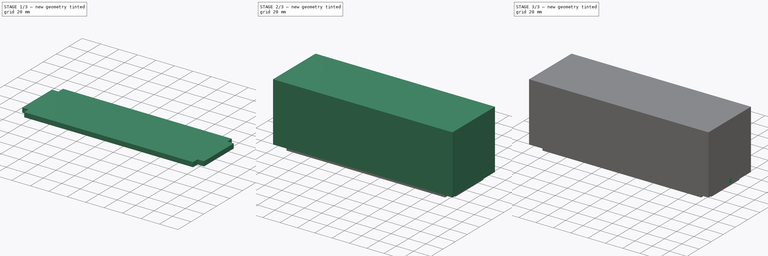
[diagram: build sequence overview — one tinted view per stage of 3, left to right]
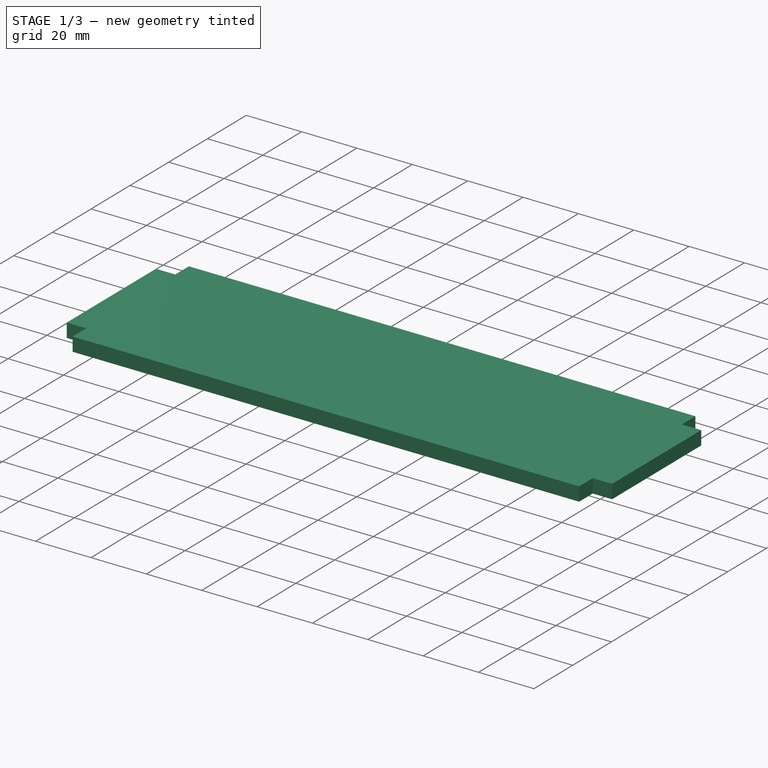
[diagram: stage 1 of 3 — iso view after this stage's code; geometry added in this stage tinted green]
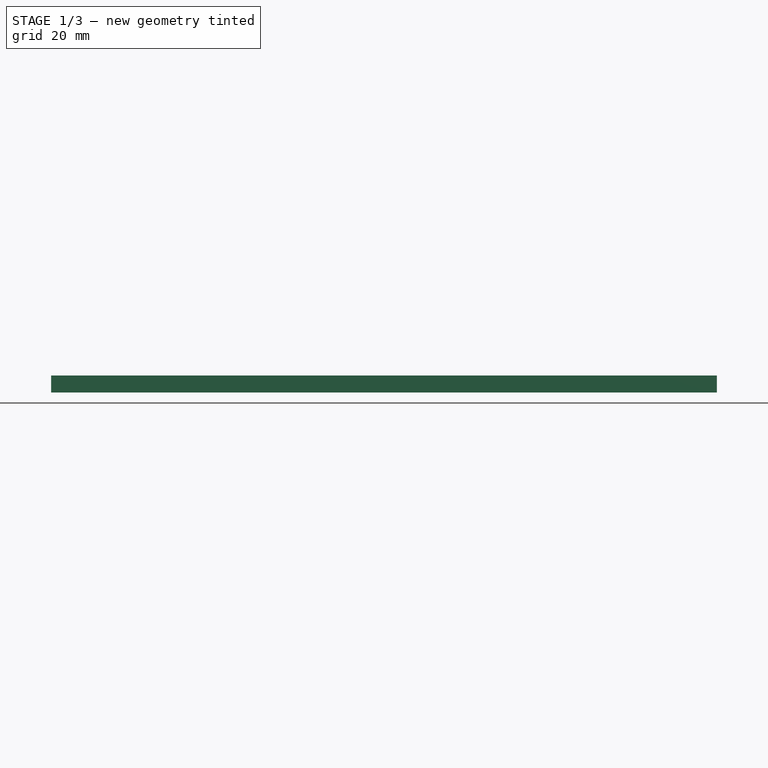
[diagram: stage 1 of 3 — front view after this stage's code; geometry added in this stage tinted green]
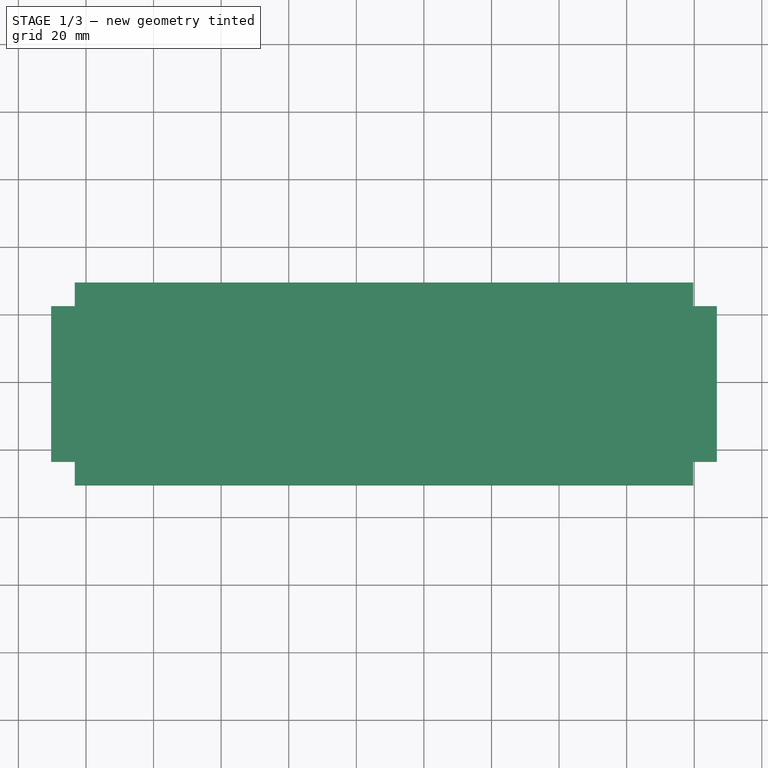
[diagram: stage 1 of 3 — top view after this stage's code; geometry added in this stage tinted green]
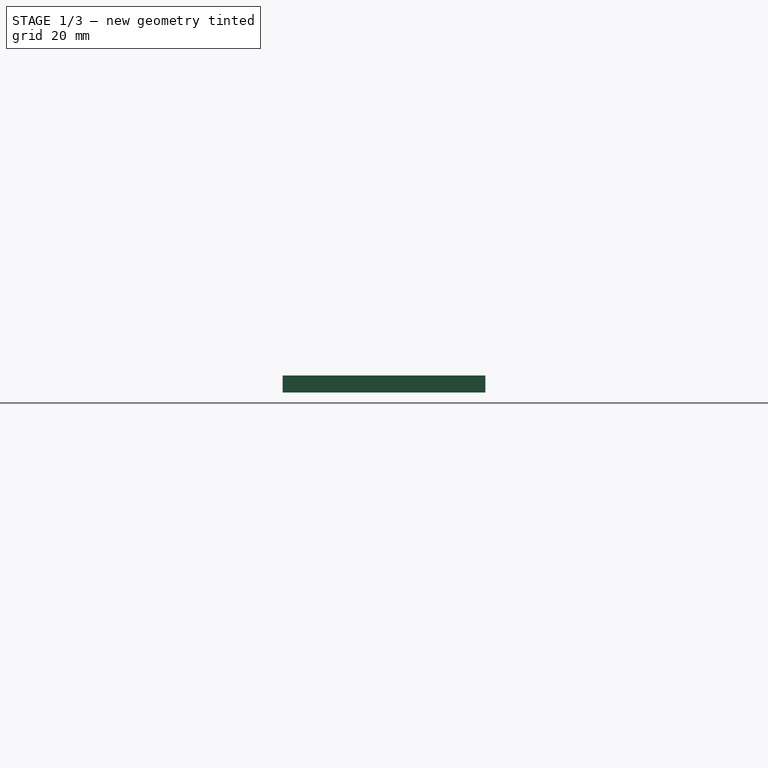
[diagram: stage 1 of 3 — right view after this stage's code; geometry added in this stage tinted green]
FCSTD DOCUMENT  (FreeCAD 0.20R29177 (Git))
Label: ElectronicAssembly_v2
License: All rights reserved
LicenseURL: http://en.wikipedia.org/wiki/All_rights_reserved
objects: Sketcher::SketchObject×7, PartDesign::Pocket×5, PartDesign::Pad×2, PartDesign::Body×2, App::Part×2, Part::Feature×1
note: 24 computed .brp shape members not serialized (recipe doc carries the construction recipe); baked Part::Feature solids carry a one-line shape summary decoded from their .brp

FEATURE [Sketcher::SketchObject] Sketch006
  FullyConstrained = false
  MapMode = 5
  Support = -> [XY_Plane006]
  sketch-geometry (4):
    g0: LineSegment StartX=-75.302 StartY=34.4613 StartZ=0 EndX=131.698 EndY=34.4613 EndZ=0
    g1: LineSegment StartX=131.698 StartY=34.4613 StartZ=0 EndX=131.698 EndY=-35.5387 EndZ=0
    g2: LineSegment StartX=131.698 StartY=-35.5387 StartZ=0 EndX=-75.302 EndY=-35.5387 EndZ=0
    g3: LineSegment StartX=-75.302 StartY=-35.5387 StartZ=0 EndX=-75.302 EndY=34.4613 EndZ=0
  constraints (10):
    c: Coincident(g0,g1)
    c: Coincident(g1,g2)
    c: Coincident(g2,g3)
    c: Coincident(g3,g0)
    c: Horizontal(g0)
    c: Horizontal(g2)
    c: Vertical(g1)
    c: Vertical(g3)
    c: DistanceX(g2,g2) = 207
    c: DistanceY(g1,g1) = 70
FEATURE [PartDesign::Pad] Pad002
  Direction = (0,0,1)
  Length = 68
  Length2 = 100
  Profile = -> Sketch006
  Type = 0
FEATURE [PartDesign::Body] Body002
  Group = -> [Sketch006,Pad002,Sketch007,Pocket,Sketch,Pocket001,Sketch008,Pocket002]
  Origin = -> Origin006
  Tip = -> Pocket002
FEATURE [App::Part] Part003  label="ElectronicsEnclosure"
  Group = -> [Body002]
  Origin = -> Origin005
FEATURE [Sketcher::SketchObject] Sketch009
  ExternalGeometry = -> [Pad002]
  FullyConstrained = true
  MapMode = 5
  Placement = pos=(0,0,0) rot=(1,0,0;3.14159rad)
  Support = -> [Pad002,XZ_Plane007]
  sketch-geometry (20):
    g0: LineSegment StartX=-63.302 StartY=23.5387 StartZ=0 EndX=-70.302 EndY=23.5387 EndZ=0
    g1: LineSegment StartX=-70.302 StartY=23.5387 StartZ=0 EndX=-70.302 EndY=30.5387 EndZ=0
    g2: LineSegment StartX=-70.302 StartY=30.5387 StartZ=0 EndX=-63.302 EndY=30.5387 EndZ=0
    g3: LineSegment StartX=-63.302 StartY=30.5387 StartZ=0 EndX=-63.302 EndY=23.5387 EndZ=0
    g4: LineSegment StartX=-70.302 StartY=-22.4613 StartZ=0 EndX=-63.302 EndY=-22.4613 EndZ=0
    g5: LineSegment StartX=-63.302 StartY=-22.4613 StartZ=0 EndX=-63.302 EndY=-29.4613 EndZ=0
    g6: LineSegment StartX=-63.302 StartY=-29.4613 StartZ=0 EndX=-70.302 EndY=-29.4613 EndZ=0
    g7: LineSegment StartX=-70.302 StartY=-29.4613 StartZ=0 EndX=-70.302 EndY=-22.4613 EndZ=0
    g8: LineSegment StartX=119.698 StartY=-29.4613 StartZ=0 EndX=126.698 EndY=-29.4613 EndZ=0
    g9: LineSegment StartX=126.698 StartY=-29.4613 StartZ=0 EndX=126.698 EndY=-22.4613 EndZ=0
    g10: LineSegment StartX=126.698 StartY=-22.4613 StartZ=0 EndX=119.698 EndY=-22.4613 EndZ=0
    g11: LineSegment StartX=119.698 StartY=-22.4613 StartZ=0 EndX=119.698 EndY=-29.4613 EndZ=0
    g12: LineSegment StartX=119.698 StartY=23.5387 StartZ=0 EndX=126.698 EndY=23.5387 EndZ=0
    g13: LineSegment StartX=126.698 StartY=23.5387 StartZ=0 EndX=126.698 EndY=30.5387 EndZ=0
    g14: LineSegment StartX=126.698 StartY=30.5387 StartZ=0 EndX=119.698 EndY=30.5387 EndZ=0
    g15: LineSegment StartX=119.698 StartY=30.5387 StartZ=0 EndX=119.698 EndY=23.5387 EndZ=0
    g16: LineSegment StartX=-63.302 StartY=-29.4613 StartZ=0 EndX=119.698 EndY=-29.4613 EndZ=0
    g17: LineSegment StartX=126.698 StartY=-22.4613 StartZ=0 EndX=126.698 EndY=23.5387 EndZ=0
    g18: LineSegment StartX=119.698 StartY=30.5387 StartZ=0 EndX=-63.302 EndY=30.5387 EndZ=0
    g19: LineSegment StartX=-70.302 StartY=-22.4613 StartZ=0 EndX=-70.302 EndY=23.5387 EndZ=0
  constraints (56):
    c: Coincident(g0,g1)
    c: Coincident(g1,g2)
    c: Coincident(g2,g3)
    c: Coincident(g3,g0)
    c: Horizontal(g0)
    c: Horizontal(g2)
    c: Vertical(g1)
    c: Vertical(g3)
    c: Coincident(g4,g5)
    c: Coincident(g5,g6)
    c: Coincident(g6,g7)
    c: Coincident(g7,g4)
    c: Horizontal(g4)
    c: Horizontal(g6)
    c: Vertical(g5)
    c: Vertical(g7)
    c: Coincident(g8,g9)
    c: Coincident(g9,g10)
    c: Coincident(g10,g11)
    c: Coincident(g11,g8)
    c: Horizontal(g8)
    c: Horizontal(g10)
    c: Vertical(g9)
    c: Vertical(g11)
    c: Coincident(g12,g13)
    c: Coincident(g13,g14)
    c: Coincident(g14,g15)
    c: Coincident(g15,g12)
    c: Horizontal(g12)
    c: Horizontal(g14)
    c: Vertical(g13)
    c: Vertical(g15)
    c: Vertical(g12,g10)
    c: Horizontal(g12,g0)
    c: Vertical(g0,g4)
    c: Horizontal(g4,g10)
    c: Coincident(g16,g5)
    c: Coincident(g16,g8)
    c: Horizontal(g16)
    c: Coincident(g17,g9)
    c: Coincident(g17,g12)
    c: Vertical(g17)
    c: Coincident(g18,g14)
    c: Coincident(g18,g2)
    c: Horizontal(g18)
    c: Equal(g2,g1)
    c: Equal(g4,g5)
    c: Coincident(g19,g4)
    c: Coincident(g19,g0)
    c: Vertical(g19)
    c: Equal(g15,g12)
    c: DistanceX(g-3,g1) = 5
    c: DistanceY(g1,g-3) = 5
    c: DistanceX(g13,g-4) = 5
    c: DistanceY(g-4,g8) = 5
    c: DistanceX(g4,g4) = 7
FEATURE [PartDesign::Pad] Pad  label="BasePad"
  Direction = (0,0,-1)
  Length = 5
  Length2 = 100
  Placement = pos=(0,0,0) rot=(1,0,0;3.14159rad)
  Profile = -> Sketch009
  Type = 0
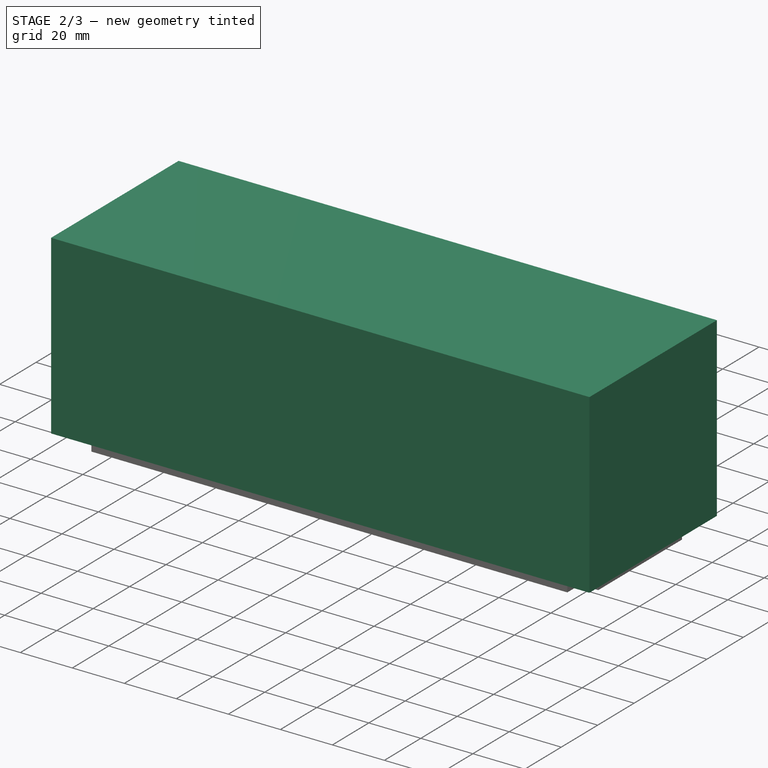
[diagram: stage 2 of 3 — iso view after this stage's code; geometry added in this stage tinted green]
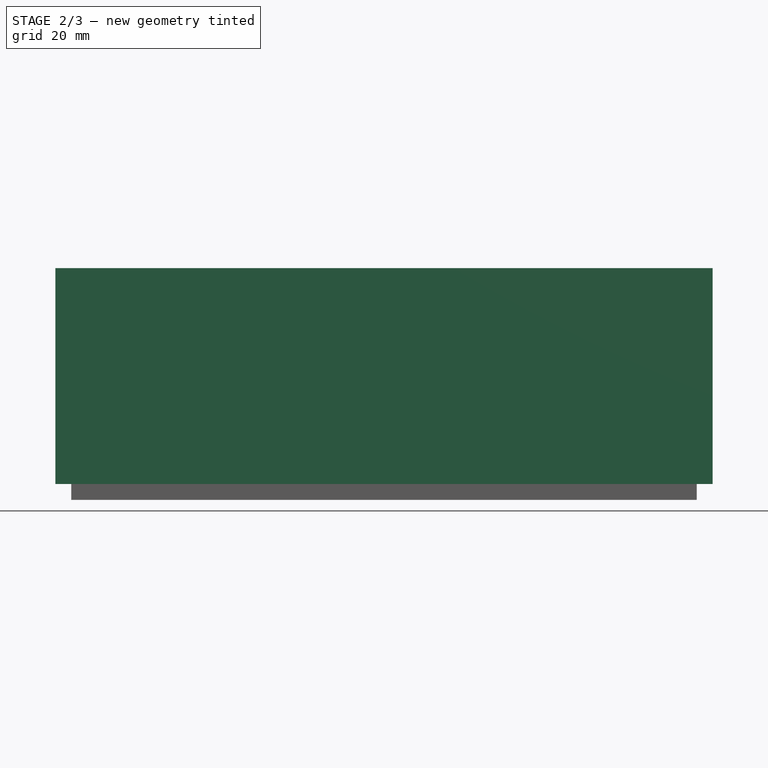
[diagram: stage 2 of 3 — front view after this stage's code; geometry added in this stage tinted green]
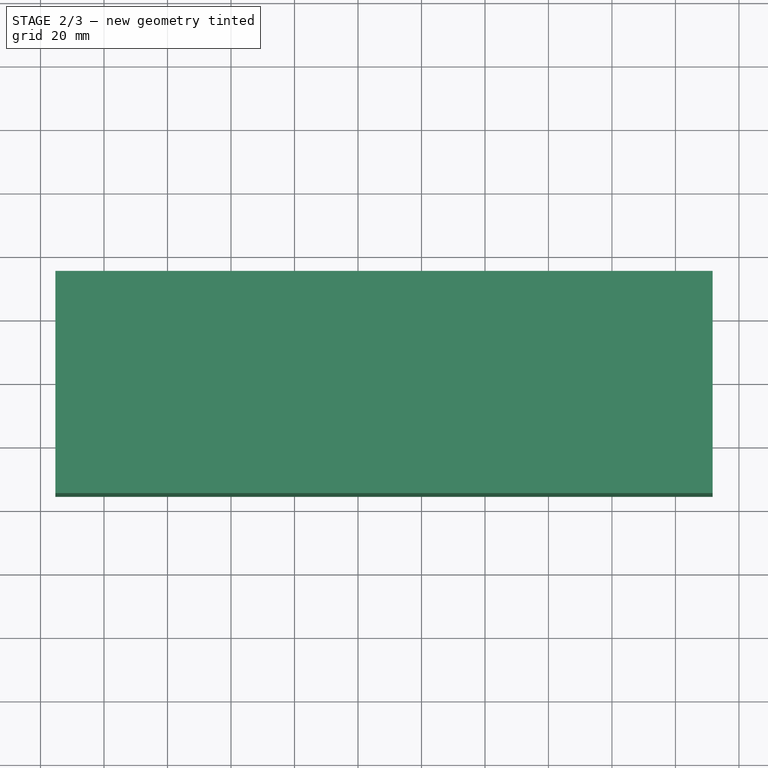
[diagram: stage 2 of 3 — top view after this stage's code; geometry added in this stage tinted green]
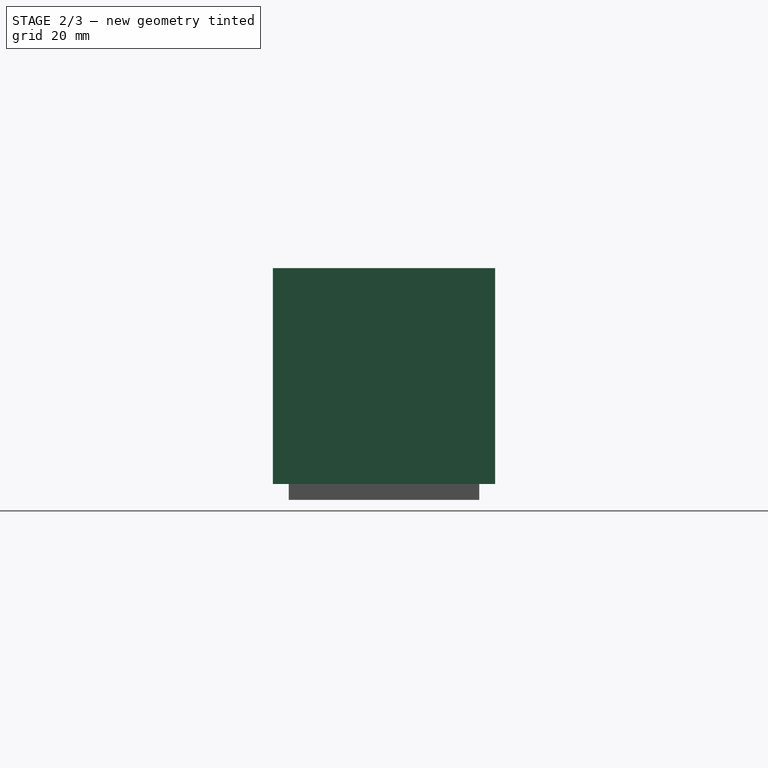
[diagram: stage 2 of 3 — right view after this stage's code; geometry added in this stage tinted green]
FEATURE [Sketcher::SketchObject] Sketch007
  ExternalGeometry = -> [Pad002]
  FullyConstrained = true
  MapMode = 5
  Placement = pos=(0,0,0) rot=(1,0,0;3.14159rad)
  Support = -> [Pad002]
  sketch-geometry (20):
    g0: LineSegment StartX=-71.302 StartY=31.5387 StartZ=0 EndX=-65.302 EndY=31.5387 EndZ=0
    g1: LineSegment StartX=-65.302 StartY=31.5387 StartZ=0 EndX=-65.302 EndY=25.5387 EndZ=0
    g2: LineSegment StartX=-65.302 StartY=25.5387 StartZ=0 EndX=-71.302 EndY=25.5387 EndZ=0
    g3: LineSegment StartX=-71.302 StartY=25.5387 StartZ=0 EndX=-71.302 EndY=31.5387 EndZ=0
    g4: LineSegment StartX=-71.302 StartY=-24.4613 StartZ=0 EndX=-65.302 EndY=-24.4613 EndZ=0
    g5: LineSegment StartX=-65.302 StartY=-24.4613 StartZ=0 EndX=-65.302 EndY=-30.4613 EndZ=0
    g6: LineSegment StartX=-65.302 StartY=-30.4613 StartZ=0 EndX=-71.302 EndY=-30.4613 EndZ=0
    g7: LineSegment StartX=-71.302 StartY=-30.4613 StartZ=0 EndX=-71.302 EndY=-24.4613 EndZ=0
    g8: LineSegment StartX=127.698 StartY=25.5387 StartZ=0 EndX=121.698 EndY=25.5387 EndZ=0
    g9: LineSegment StartX=121.698 StartY=25.5387 StartZ=0 EndX=121.698 EndY=31.5387 EndZ=0
    g10: LineSegment StartX=121.698 StartY=31.5387 StartZ=0 EndX=127.698 EndY=31.5387 EndZ=0
    g11: LineSegment StartX=127.698 StartY=31.5387 StartZ=0 EndX=127.698 EndY=25.5387 EndZ=0
    g12: LineSegment StartX=-71.302 StartY=25.5387 StartZ=0 EndX=-71.302 EndY=-24.4613 EndZ=0
    g13: LineSegment StartX=-65.302 StartY=31.5387 StartZ=0 EndX=121.698 EndY=31.5387 EndZ=0
    g14: LineSegment StartX=127.698 StartY=25.5387 StartZ=0 EndX=127.698 EndY=-24.4613 EndZ=0
    g15: LineSegment StartX=127.698 StartY=-24.4613 StartZ=0 EndX=121.698 EndY=-24.4613 EndZ=0
    g16: LineSegment StartX=121.698 StartY=-24.4613 StartZ=0 EndX=121.698 EndY=-30.4613 EndZ=0
    g17: LineSegment StartX=121.698 StartY=-30.4613 StartZ=0 EndX=127.698 EndY=-30.4613 EndZ=0
    g18: LineSegment StartX=127.698 StartY=-30.4613 StartZ=0 EndX=127.698 EndY=-24.4613 EndZ=0
    g19: LineSegment StartX=-65.302 StartY=-30.4613 StartZ=0 EndX=121.698 EndY=-30.4613 EndZ=0
  constraints (56):
    c: Coincident(g0,g1)
    c: Coincident(g1,g2)
    c: Coincident(g2,g3)
    c: Coincident(g3,g0)
    c: Horizontal(g0)
    c: Horizontal(g2)
    c: Vertical(g1)
    c: Vertical(g3)
    c: Coincident(g4,g5)
    c: Coincident(g5,g6)
    c: Coincident(g6,g7)
    c: Coincident(g7,g4)
    c: Horizontal(g4)
    c: Horizontal(g6)
    c: Vertical(g5)
    c: Vertical(g7)
    c: Coincident(g8,g9)
    c: Coincident(g9,g10)
    c: Coincident(g10,g11)
    c: Coincident(g11,g8)
    c: Horizontal(g8)
    c: Vertical(g9)
    c: Vertical(g11)
    c: Equal(g9,g1)
    c: Equal(g5,g6)
    c: Equal(g2,g3)
    c: DistanceX(g2,g2) = 6
    c: DistanceX(g-6,g0) = 4
    c: DistanceY(g0,g-6) = 4
    c: Coincident(g12,g2)
    c: Coincident(g12,g4)
    c: DistanceY(g-6,g6) = 4
    c: Coincident(g13,g1)
    c: Coincident(g13,g9)
    c: Horizontal(g13)
    c: Coincident(g14,g8)
    c: Vertical(g14)
    c: Coincident(g15,g16)
    c: Coincident(g16,g17)
    c: Coincident(g17,g18)
    c: Coincident(g18,g15)
    c: Horizontal(g15)
    c: Horizontal(g17)
    c: Vertical(g16)
    c: Vertical(g18)
    c: Coincident(g15,g14)
    c: Coincident(g19,g5)
    c: Coincident(g19,g16)
    c: Horizontal(g19)
    c: Vertical(g15,g8)
    c: DistanceX(g8,g8) = 6
    c: DistanceX(g17,g-5) = 4
    c: Horizontal(g10)
    c: Equal(g15,g18)
    c: Vertical(g12)
    c: Vertical(g4,g1)
FEATURE [PartDesign::Pocket] Pocket
  BaseFeature = -> Pad002
  Direction = (0,0,1)
  Length = 65
  Length2 = 100
  Profile = -> Sketch007
  Type = 0
FEATURE [Sketcher::SketchObject] Sketch010
  ExternalGeometry = -> [Pad,Sketch009]
  FullyConstrained = true
  MapMode = 5
  Support = -> [Pad]
  sketch-geometry (12):
    g0: LineSegment StartX=-60.802 StartY=-28.0387 StartZ=0 EndX=-60.802 EndY=-21.0387 EndZ=0
    g1: LineSegment StartX=-60.802 StartY=-21.0387 StartZ=0 EndX=-67.802 EndY=-21.0387 EndZ=0
    g2: LineSegment StartX=-67.802 StartY=-21.0387 StartZ=0 EndX=-67.802 EndY=19.9613 EndZ=0
    g3: LineSegment StartX=-67.802 StartY=19.9613 StartZ=0 EndX=-60.802 EndY=19.9613 EndZ=0
    g4: LineSegment StartX=-60.802 StartY=19.9613 StartZ=0 EndX=-60.802 EndY=26.9613 EndZ=0
    g5: LineSegment StartX=-60.802 StartY=26.9613 StartZ=0 EndX=117.198 EndY=26.9613 EndZ=0
    g6: LineSegment StartX=117.198 StartY=26.9613 StartZ=0 EndX=117.198 EndY=19.9613 EndZ=0
    g7: LineSegment StartX=117.198 StartY=19.9613 StartZ=0 EndX=124.198 EndY=19.9613 EndZ=0
    g8: LineSegment StartX=124.198 StartY=19.9613 StartZ=0 EndX=124.198 EndY=-21.0387 EndZ=0
    g9: LineSegment StartX=124.198 StartY=-21.0387 StartZ=0 EndX=117.198 EndY=-21.0387 EndZ=0
    g10: LineSegment StartX=117.198 StartY=-21.0387 StartZ=0 EndX=117.198 EndY=-28.0387 EndZ=0
    g11: LineSegment StartX=117.198 StartY=-28.0387 StartZ=0 EndX=-60.802 EndY=-28.0387 EndZ=0
  constraints (36):
    c: Vertical(g0)
    c: Coincident(g1,g0)
    c: Horizontal(g1)
    c: Coincident(g3,g2)
    c: Horizontal(g3)
    c: Vertical(g4)
    c: Horizontal(g5)
    c: Coincident(g6,g5)
    c: Vertical(g6)
    c: Coincident(g7,g6)
    c: Vertical(g8)
    c: Horizontal(g9)
    c: Vertical(g10)
    c: Coincident(g11,g10)
    c: Coincident(g11,g0)
    c: Horizontal(g11)
    c: Coincident(g10,g9)
    c: Coincident(g1,g2)
    c: Vertical(g2)
    c: Coincident(g4,g3)
    c: Coincident(g5,g4)
    c: DistanceX(g5,g-4) = 2.5
    c: DistanceY(g6,g-7) = 2.5
    c: Horizontal(g7)
    c: DistanceX(g8,g-8) = 2.5
    c: Coincident(g7,g8)
    c: Coincident(g8,g9)
    c: DistanceX(g-10,g2) = 2.5
    c: DistanceX(g-5,g4) = 2.5
    c: DistanceY(g3,g-10) = 2.5
    c: DistanceX(g10,g-14) = 2.5
    c: DistanceY(g-3,g9) = 2.5
    c: DistanceY(g-14,g10) = 2.5
    c: DistanceX(g-12,g0) = 2.5
    c: DistanceY(g-11,g1) = 2.5
    c: DistanceY(g4,g-5) = 2.5
FEATURE [PartDesign::Pocket] Pocket003
  BaseFeature = -> Pad
  Direction = (0,1e-16,-1)
  Length = 3
  Length2 = 100
  Placement = pos=(0,0,0) rot=(1,0,0;3.14159rad)
  Profile = -> Sketch010
  Type = 0
FEATURE [Part::Feature] Solid001  label="ArduinoMega_STEP_AP204"
  Placement = pos=(-10,-1,-7) rot=(0,0,1;0rad)
  shape: bbox 108 x 53.42 x 12.95 mm, 1851 faces (baked)
FEATURE [Sketcher::SketchObject] Sketch011
  FullyConstrained = false
  MapMode = 5
  Placement = pos=(0,1.1e-15,-3) rot=(0,0,1;0rad)
  Support = -> [Pocket003]
  sketch-geometry (22):
    g0: Circle CenterX=-48.6577 CenterY=23.1692 CenterZ=0 NormalX=0 NormalY=0 NormalZ=1 AngleXU=0 Radius=1.5
    g1: Circle CenterX=-34.1147 CenterY=7.66922 CenterZ=0 NormalX=0 NormalY=0 NormalZ=1 AngleXU=0 Radius=1.5
    g2: Circle CenterX=26.3423 CenterY=22.8681 CenterZ=0 NormalX=0 NormalY=0 NormalZ=1 AngleXU=0 Radius=1.5
    g3: Circle CenterX=-25.1577 CenterY=-20.3308 CenterZ=0 NormalX=0 NormalY=0 NormalZ=1 AngleXU=0 Radius=1.5
    g4: Circle CenterX=-56.1577 CenterY=-25.3308 CenterZ=0 NormalX=0 NormalY=0 NormalZ=1 AngleXU=0 Radius=1.5
    g5: Circle CenterX=26.3423 CenterY=-25.6319 CenterZ=0 NormalX=0 NormalY=0 NormalZ=1 AngleXU=0 Radius=1.5
    g6: Circle CenterX=52.5 CenterY=-11.6319 CenterZ=0 NormalX=0 NormalY=0 NormalZ=1 AngleXU=0 Radius=1.5
    g7: Circle CenterX=52.5 CenterY=-16.6319 CenterZ=0 NormalX=0 NormalY=0 NormalZ=1 AngleXU=0 Radius=1.5
    g8: LineSegment StartX=40 StartY=-1.63194 StartZ=0 EndX=65 EndY=-1.63194 EndZ=0
    g9: LineSegment StartX=65 StartY=-1.63194 StartZ=0 EndX=65 EndY=-26.6319 EndZ=0
    g10: LineSegment StartX=65 StartY=-26.6319 StartZ=0 EndX=40 EndY=-26.6319 EndZ=0
    g11: LineSegment StartX=40 StartY=-26.6319 StartZ=0 EndX=40 EndY=-1.63194 EndZ=0
    g12: LineSegment StartX=52.5 StartY=-11.6319 StartZ=0 EndX=52.5 EndY=-1.63194 EndZ=0
    g13: LineSegment StartX=52.5 StartY=-16.6319 StartZ=0 EndX=52.5 EndY=-26.6319 EndZ=0
    g14: LineSegment StartX=52.5 StartY=-11.6319 StartZ=0 EndX=40 EndY=-11.6319 EndZ=0
    g15: LineSegment StartX=52.5 StartY=-11.6319 StartZ=0 EndX=65 EndY=-11.6319 EndZ=0
    g16: LineSegment StartX=70 StartY=-23.9403 StartZ=0 EndX=115 EndY=-23.9403 EndZ=0
    g17: LineSegment StartX=115 StartY=-23.9403 StartZ=0 EndX=115 EndY=21.0597 EndZ=0
    g18: LineSegment StartX=115 StartY=21.0597 StartZ=0 EndX=70 EndY=21.0597 EndZ=0
    g19: LineSegment StartX=70 StartY=21.0597 StartZ=0 EndX=70 EndY=-23.9403 EndZ=0
    g20: Circle CenterX=73 CenterY=18.0597 CenterZ=0 NormalX=0 NormalY=0 NormalZ=1 AngleXU=0 Radius=1.5
    g21: Circle CenterX=73 CenterY=-20.9403 CenterZ=0 NormalX=0 NormalY=0 NormalZ=1 AngleXU=0 Radius=1.5
  constraints (61):
    c: Diameter(g0) = 3
    c: Diameter(g1) = 3
    c: Diameter(g2) = 3
    c: Diameter(g3) = 3
    c: Diameter(g4) = 3
    c: Diameter(g5) = 3
    c: DistanceX(g4,g3) = 31
    c: DistanceY(g3,g1) = 28
    c: DistanceY(g1,g0) = 15.5
    c: DistanceX(g0,g2) = 75
    c: DistanceY(g5,g2) = 48.5
    c: DistanceX(g3,g5) = 51.5
    c: Diameter(g7) = 3
    c: Diameter(g6) = 3
    c: DistanceY(g7,g6) = 5
    c: Vertical(g6,g7)
    c: Coincident(g8,g9)
    c: Coincident(g9,g10)
    c: Coincident(g10,g11)
    c: Coincident(g11,g8)
    c: Horizontal(g8)
    c: Horizontal(g10)
    c: Vertical(g9)
    c: Vertical(g11)
    c: Equal(g11,g10)
    c: DistanceX(g8,g8) = 25
    c: Coincident(g12,g6)
    c: PointOnObject(g12,g8)
    c: Vertical(g12)
    c: Coincident(g13,g7)
    c: PointOnObject(g13,g10)
    c: Vertical(g13)
    c: Coincident(g14,g6)
    c: PointOnObject(g14,g11)
    c: Horizontal(g14)
    c: Horizontal(g15)
    c: Equal(g14,g15)
    c: Equal(g12,g13)
    c: Coincident(g15,g6)
    c: PointOnObject(g15,g9)
    c: Coincident(g16,g17)
    c: Coincident(g17,g18)
    c: Coincident(g18,g19)
    c: Coincident(g19,g16)
    c: Horizontal(g16)
    c: Horizontal(g18)
    c: Vertical(g17)
    c: Vertical(g19)
    c: Equal(g18,g17)
    c: DistanceX(g18,g18) = 45
    c: DistanceX(g9,g16) = 5
    c: DistanceX(g16,g21) = 3
    c: DistanceY(g16,g21) = 3
    c: Diameter(g21) = 3
    c: DistanceX(g18,g20) = 3
    c: DistanceY(g20,g18) = 3
    c: Diameter(g20) = 3
    c: DistanceY(g4,g0) = 48.5
    c: DistanceX(g10) = 40
    c: DistanceY(g5,g14) = 14
    c: DistanceX(g4,g0) = 7.5
FEATURE [PartDesign::Pocket] Pocket004
  BaseFeature = -> Pocket003
  Direction = (0,4e-16,-1)
  Length = 10
  Length2 = 100
  Placement = pos=(0,0,0) rot=(1,0,0;3.14159rad)
  Profile = -> Sketch011
  Type = 0
FEATURE [PartDesign::Body] Body  label="MountPadBody"
  Group = -> [Sketch009,Pad,Sketch010,Pocket003,Sketch011,Pocket004]
  Origin = -> Origin007
  Tip = -> Pocket004
FEATURE [App::Part] Part  label="MountPad"
  Group = -> [Body]
  Origin = -> Origin
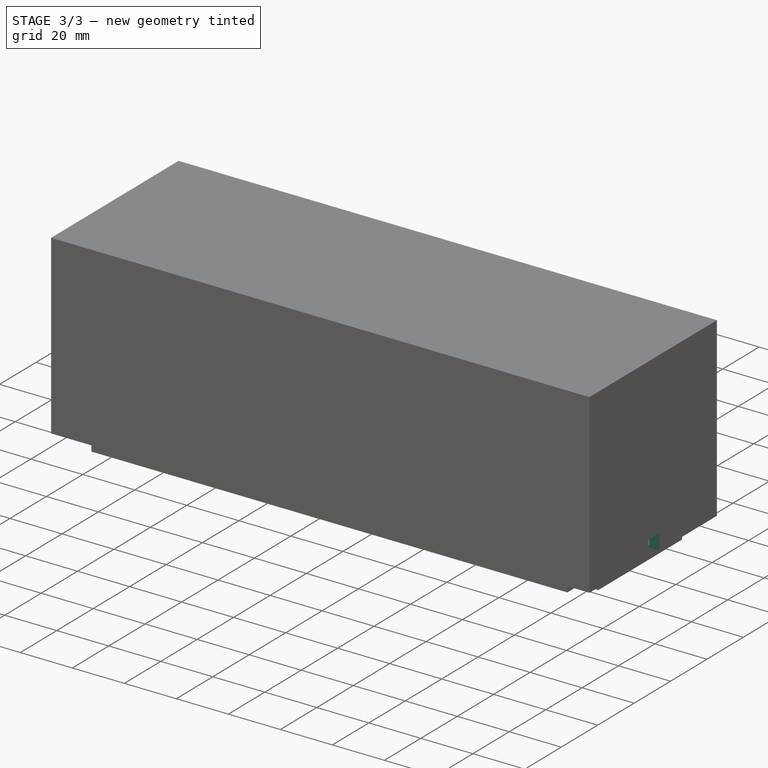
[diagram: stage 3 of 3 — iso view after this stage's code; geometry added in this stage tinted green]
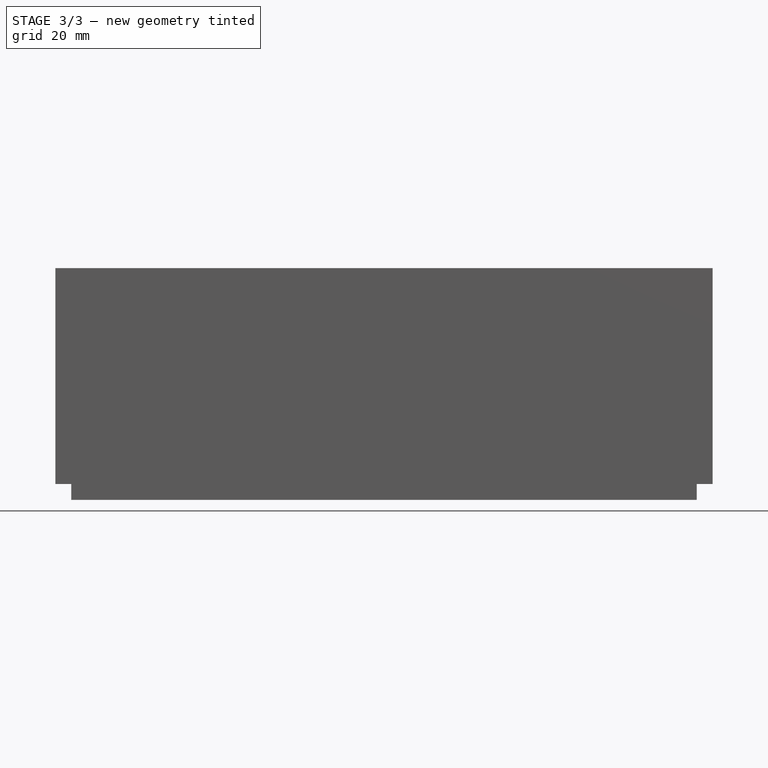
[diagram: stage 3 of 3 — front view after this stage's code; geometry added in this stage tinted green]
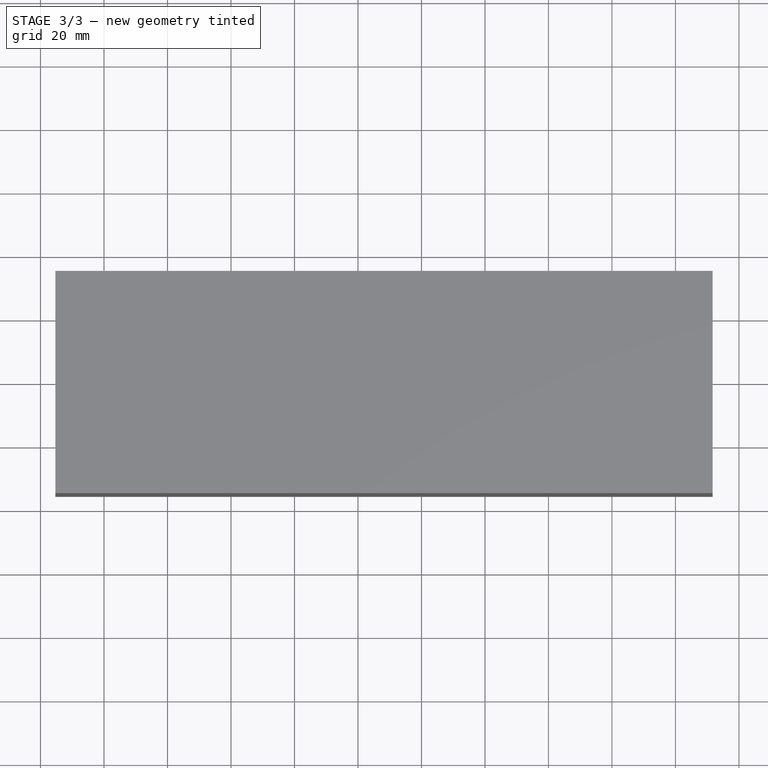
[diagram: stage 3 of 3 — top view after this stage's code; geometry added in this stage tinted green]
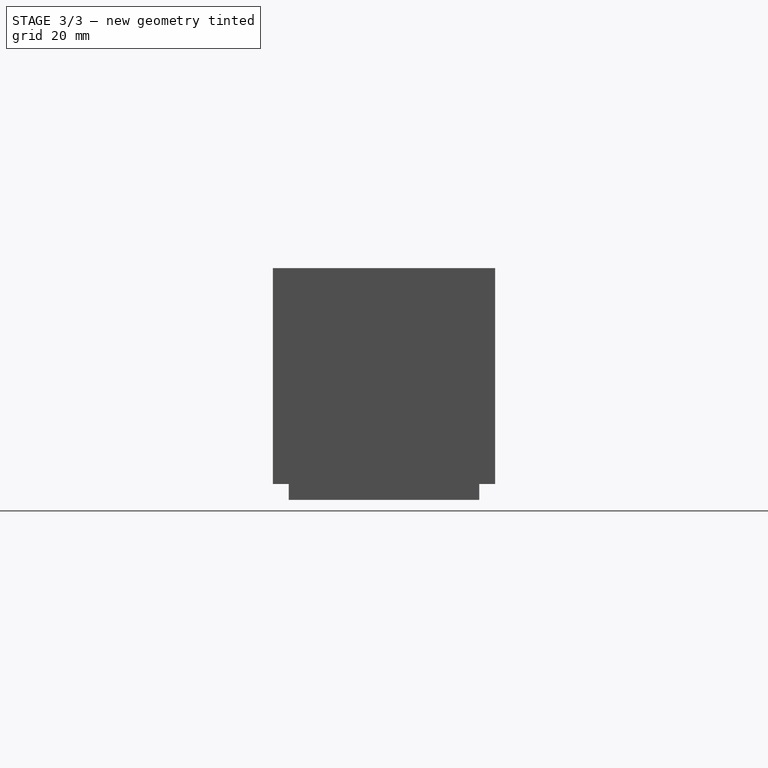
[diagram: stage 3 of 3 — right view after this stage's code; geometry added in this stage tinted green]
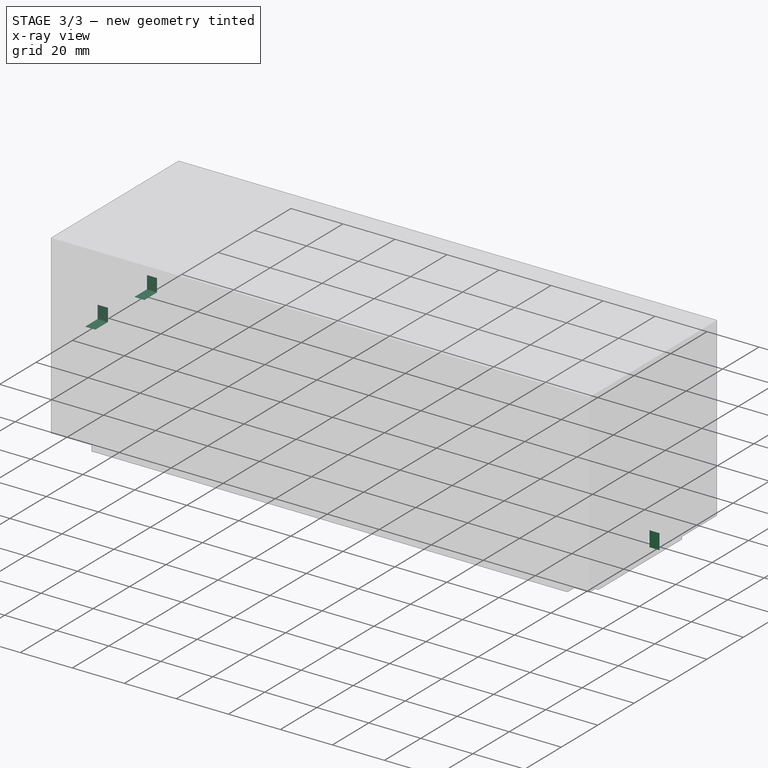
[diagram: stage 3 of 3 — x-ray composite at the iso view; earlier geometry ghosted, this stage's added geometry solid]
FEATURE [Sketcher::SketchObject] Sketch
  FullyConstrained = true
  MapMode = 5
  Placement = pos=(-75.302,0,0) rot=(0.57735,-0.57735,-0.57735;2.0944rad)
  Support = -> [Pad002]
  sketch-geometry (10):
    g0: LineSegment StartX=-17 StartY=35 StartZ=0 EndX=-10 EndY=35 EndZ=0
    g1: LineSegment StartX=-10 StartY=35 StartZ=0 EndX=-10 EndY=30 EndZ=0
    g2: LineSegment StartX=-10 StartY=30 StartZ=0 EndX=-17 EndY=30 EndZ=0
    g3: LineSegment StartX=-17 StartY=30 StartZ=0 EndX=-17 EndY=35 EndZ=0
    g4: LineSegment StartX=10 StartY=35 StartZ=0 EndX=17 EndY=35 EndZ=0
    g5: LineSegment StartX=17 StartY=35 StartZ=0 EndX=17 EndY=30 EndZ=0
    g6: LineSegment StartX=17 StartY=30 StartZ=0 EndX=10 EndY=30 EndZ=0
    g7: LineSegment StartX=10 StartY=30 StartZ=0 EndX=10 EndY=35 EndZ=0
    g8: LineSegment StartX=0 StartY=30 StartZ=0 EndX=-10 EndY=30 EndZ=0
    g9: LineSegment StartX=0 StartY=30 StartZ=0 EndX=10 EndY=30 EndZ=0
  constraints (29):
    c: Coincident(g0,g1)
    c: Coincident(g1,g2)
    c: Coincident(g2,g3)
    c: Coincident(g3,g0)
    c: Horizontal(g0)
    c: Horizontal(g2)
    c: Vertical(g1)
    c: Vertical(g3)
    c: Coincident(g4,g5)
    c: Coincident(g5,g6)
    c: Coincident(g6,g7)
    c: Coincident(g7,g4)
    c: Horizontal(g4)
    c: Horizontal(g6)
    c: Vertical(g5)
    c: Vertical(g7)
    c: DistanceX(g0,g0) = 7
    c: DistanceX(g4,g4) = 7
    c: DistanceY(g5,g5) = 5
    c: Horizontal(g0,g4)
    c: Horizontal(g1,g6)
    c: PointOnObject(g8,g-2)
    c: Coincident(g8,g1)
    c: Coincident(g9,g8)
    c: Coincident(g9,g6)
    c: Equal(g9,g8)
    c: Horizontal(g9)
    c: DistanceX(g8,g8) = 10
    c: DistanceY(g-1,g8) = 30
FEATURE [PartDesign::Pocket] Pocket001
  BaseFeature = -> Pocket
  Direction = (1,0,0)
  Length = 20
  Length2 = 100
  Profile = -> Sketch
  Type = 0
FEATURE [Sketcher::SketchObject] Sketch008
  FullyConstrained = true
  MapMode = 5
  Placement = pos=(131.698,0,0) rot=(0.57735,0.57735,0.57735;2.0944rad)
  Support = -> [Pad002]
  sketch-geometry (6):
    g0: LineSegment StartX=-3 StartY=6 StartZ=0 EndX=3 EndY=6 EndZ=0
    g1: LineSegment StartX=3 StartY=6 StartZ=0 EndX=3 EndY=0 EndZ=0
    g2: LineSegment StartX=3 StartY=0 StartZ=0 EndX=-3 EndY=0 EndZ=0
    g3: LineSegment StartX=-3 StartY=0 StartZ=0 EndX=-3 EndY=6 EndZ=0
    g4: LineSegment StartX=0 StartY=0 StartZ=0 EndX=-3 EndY=0 EndZ=0
    g5: LineSegment StartX=0 StartY=0 StartZ=0 EndX=3 EndY=0 EndZ=0
  constraints (17):
    c: Coincident(g0,g1)
    c: Coincident(g1,g2)
    c: Coincident(g2,g3)
    c: Coincident(g3,g0)
    c: Horizontal(g0)
    c: Horizontal(g2)
    c: Vertical(g1)
    c: Vertical(g3)
    c: DistanceY(g3,g3) = 6
    c: DistanceX(g0,g0) = 6
    c: Coincident(g4,g-1)
    c: PointOnObject(g4,g-1)
    c: Coincident(g5,g4)
    c: PointOnObject(g5,g-1)
    c: Equal(g4,g5)
    c: Vertical(g5,g1)
    c: Coincident(g2,g4)
FEATURE [PartDesign::Pocket] Pocket002
  BaseFeature = -> Pocket001
  Direction = (-1,0,0)
  Length = 10
  Length2 = 100
  Profile = -> Sketch008
  Type = 0
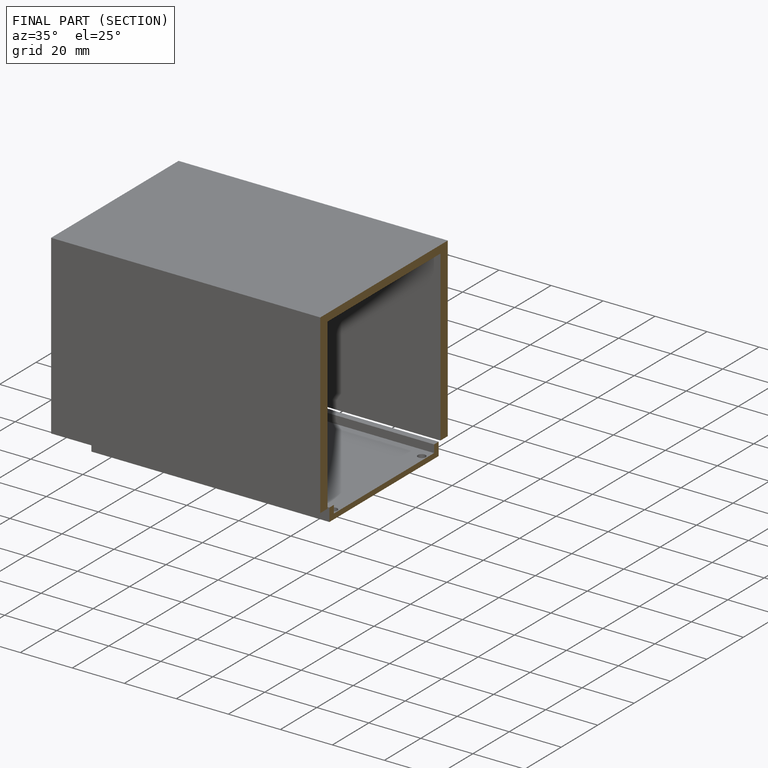
[diagram: finished part — half-section view (interior)]
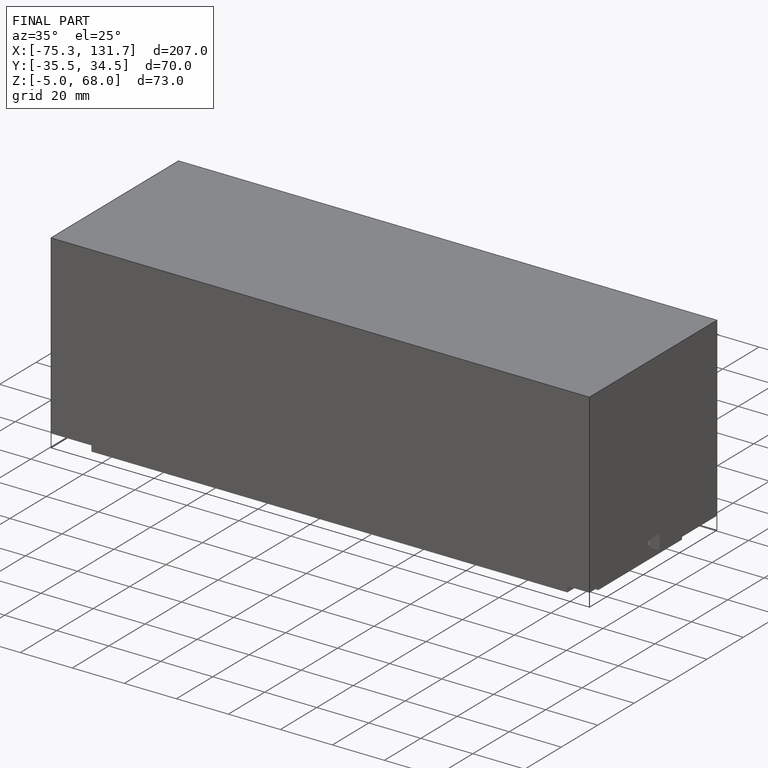
[diagram: finished part — iso view with bounding-box wireframe]
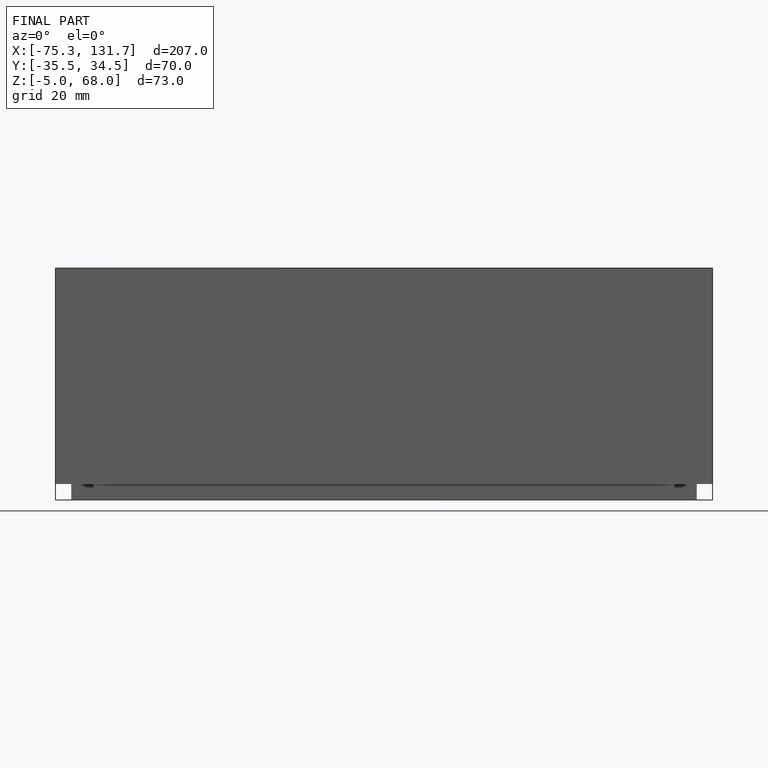
[diagram: finished part — front view with bounding-box wireframe]
